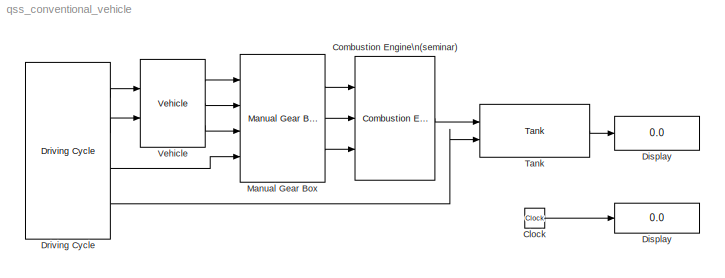
MODEL qss_conventional_vehicle
KIND model
BLOCK [Display]  Display 
  Decimation = 1
  Lockdown = off
  Ports = [1]
  SID = 1
BLOCK [Clock] Clock
  SID = 2
BLOCK [Reference] Combustion Engine\n(seminar)  REF=qss_tb_library/Energy Converter/Combustion Engine\n(consumption map)  (lib defined in mdl_a75e96b0ff2a, mdl_aad2a3137e65)
  ENABLE_FUEL_CUTOFF = on
  P_CE_cutoff = 0
  P_CE_idle = 8000
  P_aux = 0
  Ports = [3, 1]
  SID = 3
  SourceBlock = qss_tb_library/Energy Converter/Combustion Engine\n(consumption map)
  SourceType = Combustion Engine (based on consumption map)
  T_CE_cutoff = 5
  Tag = combustion engine
  theta_CE = 0.2
  w_CE_idle = 105
BLOCK [Display] Display
  Decimation = 1
  Lockdown = off
  Ports = [1]
  SID = 4
BLOCK [Reference] Driving Cycle  REF=qss_tb_library/Driving Cycle/Driving Cycle  (lib defined in mdl_a75e96b0ff2a, mdl_aad2a3137e65)
  Ports = [0, 4]
  SID = 5
  SourceBlock = qss_tb_library/Driving Cycle/Driving Cycle
  SourceType = Driving Cycle
  Tag = cycle
  autostop = on
  cyclenr = Europe: NEDC
  stepsize = 1
BLOCK [Reference] Manual Gear Box  REF=qss_tb_library/Gear System/Manual Gear Box  (lib defined in mdl_a75e96b0ff2a, mdl_aad2a3137e65)
  P_GT0 = 100
  Ports = [4, 3]
  SID = 6
  SourceBlock = qss_tb_library/Gear System/Manual Gear Box
  SourceType = Manual Gear Box
  Tag = transmission
  e_GT = 0.98
  i_1 = 3.27
  i_2 = 1.92
  i_3 = 1.26
  i_4 = 0.88
  i_5 = 0.7
  i_diff = 3.29
  w_wheel_min = 1
BLOCK [Reference] Tank  REF=qss_tb_library/Energy Source/Tank  (lib defined in mdl_a75e96b0ff2a, mdl_aad2a3137e65)
  Ports = [2, 1]
  SID = 7
  SourceBlock = qss_tb_library/Energy Source/Tank
  SourceType = Tank
  Tag = tank
  flag_cold_start = on
  fuel = Diesel
BLOCK [Reference] Vehicle  REF=qss_tb_library/Vehicle/Vehicle  (lib defined in mdl_a75e96b0ff2a, mdl_aad2a3137e65)
  A_f = 2.3
  Ports = [2, 3]
  SID = 8
  SourceBlock = qss_tb_library/Vehicle/Vehicle
  SourceType = Vehicle
  Tag = vehicle
  cw = 0.31
  d_wheel = 0.576
  m_f = 1115
  mt2m_f = 5
  mu = 0.013
LINE Clock:1 ->  Display :1
LINE Combustion Engine\n(seminar):1 -> Tank:1
LINE Driving Cycle:1 -> Vehicle:1
LINE Driving Cycle:2 -> Vehicle:2
LINE Driving Cycle:3 -> Manual Gear Box:4
LINE Driving Cycle:4 -> Tank:2
LINE Manual Gear Box:1 -> Combustion Engine\n(seminar):1
LINE Manual Gear Box:2 -> Combustion Engine\n(seminar):2
LINE Manual Gear Box:3 -> Combustion Engine\n(seminar):3
LINE Tank:1 -> Display:1
LINE Vehicle:1 -> Manual Gear Box:1
LINE Vehicle:2 -> Manual Gear Box:2
LINE Vehicle:3 -> Manual Gear Box:3
